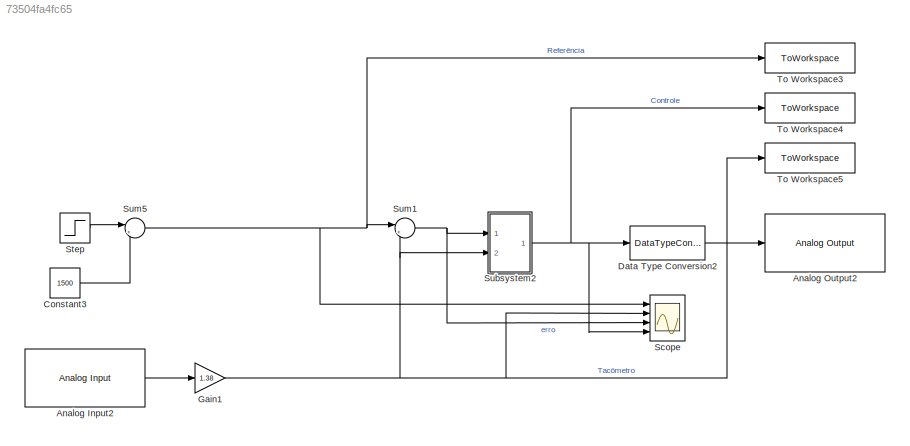
MODEL slx_73504fa4fc65
KIND model
CONFIG AbsTol = auto
CONFIG EnableMultiTasking = on
CONFIG FixedStep = 0.001
CONFIG MaxStep = auto
CONFIG MinStep = auto
CONFIG RelTol = 1e-3
CONFIG SampleTimeConstraint = Unconstrained
CONFIG SolverName = ode4
CONFIG StartTime = 0.0
CONFIG StopTime = inf
BLOCK [Reference] Analog Input2  REF=arduinolib/Analog Input
  Ports = [0, 1]
  SourceBlock = arduinolib/Analog Input
  SourceProductBaseCode = ARDUINO
  SourceType = Arduino Analog Input
BLOCK [Reference] Analog Output2  REF=arduinolib/Analog Output
  Ports = [1]
  SourceBlock = arduinolib/Analog Output
  SourceProductBaseCode = ARDUINO
  SourceType = Analog Output
BLOCK [Constant] Constant3
  Value = 1500
BLOCK [DataTypeConversion] Data Type Conversion2
  OutDataTypeStr = uint16
  RndMeth = Floor
  SaturateOnIntegerOverflow = off
BLOCK [Gain] Gain1
  Gain = 1.38
BLOCK [Scope] Scope
  Floating = off
  NumInputPorts = 4
  Ports = [4]
  ScopeSpecificationString = Simulink.scopes.TimeScopeBlockCfg('CurrentConfiguration', extmgr.ConfigurationSet(extmgr.Configuration('Core','General UI',true),extmgr.Configuration('Core','Source UI',true),extmgr.Configuration('Sources','WiredSimulink',true,'DataLoggingVariableName','ScopeData1'),extmgr.Configuration('Visuals','Time Domain',true,'SerializedDisplays',{struct('MinYLimReal','-2830.29099','MaxYLimReal','4371.69113'...<+1475ch>
BLOCK [Step] Step
  After = 2000
  SampleTime = 0
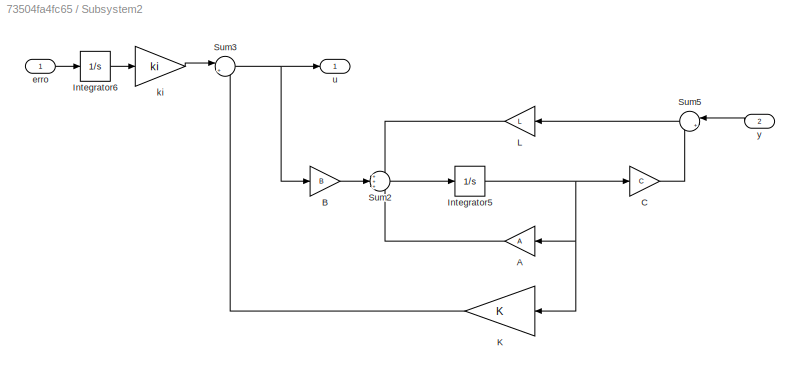
BLOCK [SubSystem] Subsystem2
  Ports = [2, 1]
  RequestExecContextInheritance = off
BLOCK [Gain] Subsystem2/A
  Gain = A
  Multiplication = Matrix(K*u)
  NameLocation = top
BLOCK [Gain] Subsystem2/B
  Gain = B
  Multiplication = Matrix(K*u)
BLOCK [Gain] Subsystem2/C
  Gain = C
  Multiplication = Matrix(K*u)
BLOCK [Integrator] Subsystem2/Integrator5
  InitialCondition = -2
  Ports = [1, 1]
BLOCK [Integrator] Subsystem2/Integrator6
  Ports = [1, 1]
BLOCK [Gain] Subsystem2/K
  Gain = K
  Multiplication = Matrix(K*u)
BLOCK [Gain] Subsystem2/L
  Gain = L
  Multiplication = Matrix(K*u)
BLOCK [Sum] Subsystem2/Sum2
  Inputs = +++
  Ports = [3, 1]
BLOCK [Sum] Subsystem2/Sum3
  Inputs = |+-
  Ports = [2, 1]
BLOCK [Sum] Subsystem2/Sum5
  Inputs = |+-
  NameLocation = top
  Ports = [2, 1]
BLOCK [Inport] Subsystem2/erro
BLOCK [Gain] Subsystem2/ki
  Gain = ki
  Multiplication = Matrix(K*u)
BLOCK [Outport] Subsystem2/u
BLOCK [Inport] Subsystem2/y
  NameLocation = top
  Port = 2
BLOCK [Sum] Sum1
  Inputs = |+-
  Ports = [2, 1]
BLOCK [Sum] Sum5
  Inputs = |++
  Ports = [2, 1]
BLOCK [ToWorkspace] To Workspace3
  FixptAsFi = on
  MaxDataPoints = inf
  Ports = [1]
  SampleTime = -1
  SaveFormat = Structure With Time
  VariableName = reference
BLOCK [ToWorkspace] To Workspace4
  FixptAsFi = on
  MaxDataPoints = inf
  Ports = [1]
  SampleTime = -1
  SaveFormat = Structure With Time
  VariableName = control
BLOCK [ToWorkspace] To Workspace5
  FixptAsFi = on
  MaxDataPoints = inf
  Ports = [1]
  SampleTime = -1
  SaveFormat = Structure With Time
  VariableName = tacometer
LINE Analog Input2:1 -> Gain1:1
LINE Constant3:1 -> Sum5:2
LINE Data Type Conversion2:1 -> Analog Output2:1
NET Gain1:1 -> Scope:2, Subsystem2:2, Sum1:2, To Workspace5:1
LINE Step:1 -> Sum5:1
LINE Subsystem2/A:1 -> Subsystem2/Sum2:3
LINE Subsystem2/B:1 -> Subsystem2/Sum2:2
LINE Subsystem2/C:1 -> Subsystem2/Sum5:2
NET Subsystem2/Integrator5:1 -> Subsystem2/A:1, Subsystem2/C:1, Subsystem2/K:1
LINE Subsystem2/Integrator6:1 -> Subsystem2/ki:1
LINE Subsystem2/K:1 -> Subsystem2/Sum3:2
LINE Subsystem2/L:1 -> Subsystem2/Sum2:1
LINE Subsystem2/Sum2:1 -> Subsystem2/Integrator5:1
NET Subsystem2/Sum3:1 -> Subsystem2/B:1, Subsystem2/u:1
LINE Subsystem2/Sum5:1 -> Subsystem2/L:1
LINE Subsystem2/erro:1 -> Subsystem2/Integrator6:1
LINE Subsystem2/ki:1 -> Subsystem2/Sum3:1
LINE Subsystem2/y:1 -> Subsystem2/Sum5:1
NET Subsystem2:1 -> Data Type Conversion2:1, Scope:4, To Workspace4:1
NET Sum1:1 -> Scope:3, Subsystem2:1
NET Sum5:1 -> Scope:1, Sum1:1, To Workspace3:1
note: NET lines group one-source signal fan-out (src -> all destinations, sorted); 1:1 wires keep LINE
